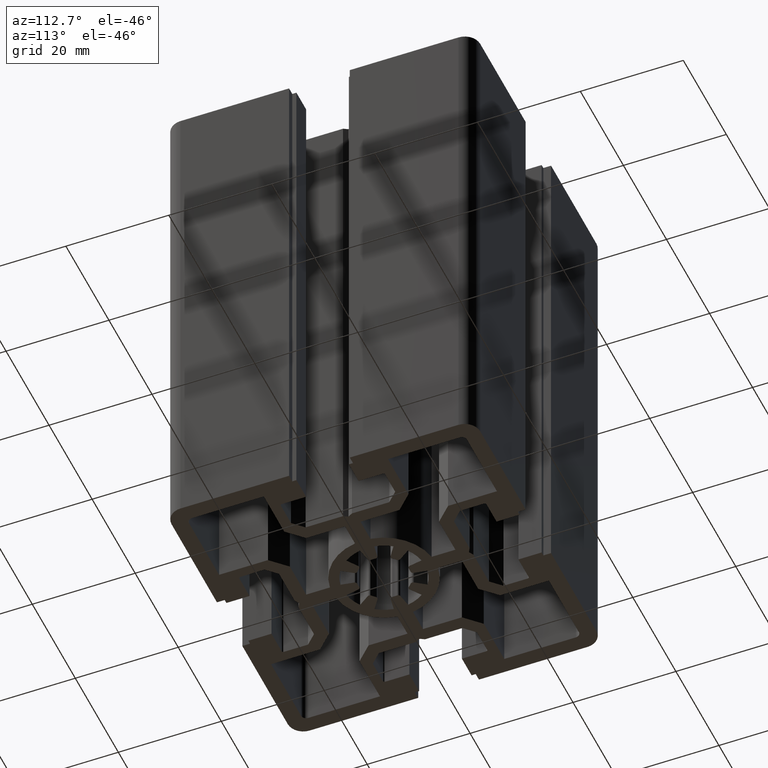
[diagram: clean part render]
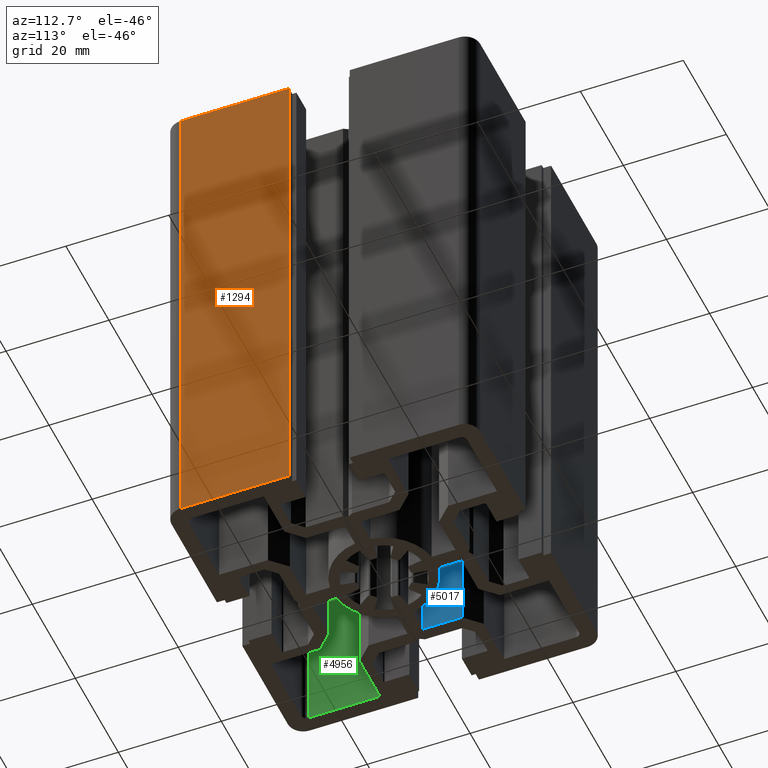
[diagram: same view with three faces highlighted in distinct colors, each labeled with its STEP entity id]
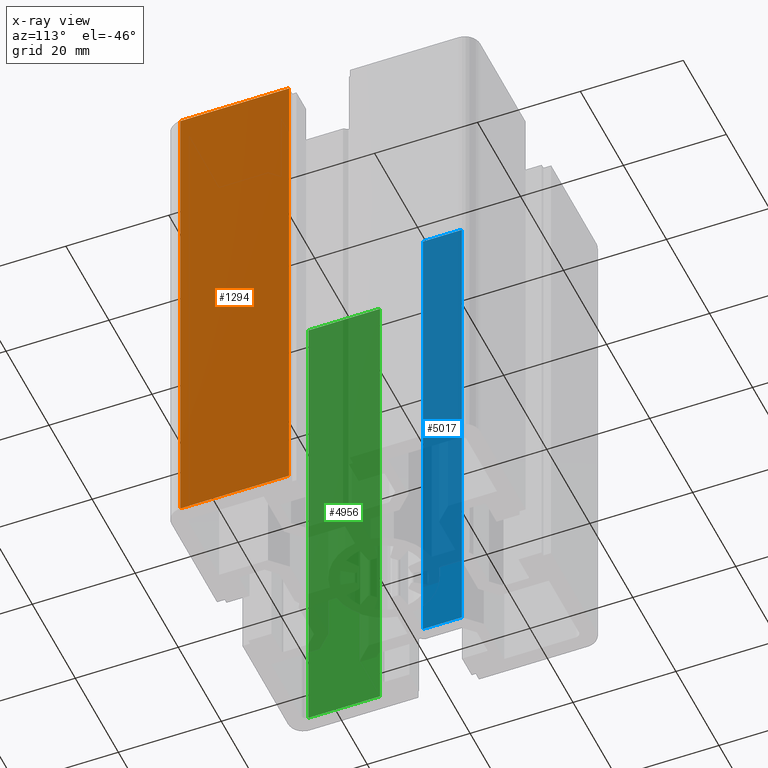
[diagram: x-ray of the same camera — body ghosted, the three highlighted faces saturated]
A machine part, auxiliary view with three faces highlighted in distinct colors.
The next image is the same camera in x-ray (body ghosted, the three faces saturated) — at least one of them is partly hidden behind the body in this view.
Their STEP definitions:

[orange] entity #1294 — the highlighted planar face has unit normal (-1, 0, 0).
#465 = EDGE_CURVE ( 'NONE', #520, #513, #2547, .T. ) ;
#513 = VERTEX_POINT ( 'NONE', #2641 ) ;
#520 = VERTEX_POINT ( 'NONE', #2635 ) ;
#1135 = EDGE_CURVE ( 'NONE', #1183, #1174, #5427, .T. ) ;
#1174 = VERTEX_POINT ( 'NONE', #5437 ) ;
#1183 = VERTEX_POINT ( 'NONE', #5461 ) ;
#1229 = ORIENTED_EDGE ( 'NONE', *, *, #1135, .T. ) ;
#1231 = ORIENTED_EDGE ( 'NONE', *, *, #465, .F. ) ;
#1238 = ORIENTED_EDGE ( 'NONE', *, *, #1336, .T. ) ;
#1292 = ORIENTED_EDGE ( 'NONE', *, *, #1338, .F. ) ;
#1294 = ADVANCED_FACE ( 'NONE', ( #5662 ), #5663, .F. ) ;
#1332 = EDGE_LOOP ( 'NONE', ( #1229, #1292, #1231, #1238 ) ) ;
#1336 = EDGE_CURVE ( 'NONE', #520, #1183, #5711, .T. ) ;
#1338 = EDGE_CURVE ( 'NONE', #513, #1174, #5706, .T. ) ;
#2544 = DIRECTION ( 'NONE',  ( 0.0000000000000000000, 1.000000000000000000, 0.0000000000000000000 ) ) ;
#2545 = VECTOR ( 'NONE', #2544, 1000.000000000000000 ) ;
#2546 = CARTESIAN_POINT ( 'NONE',  ( 30.00000000000000000, -27.00000000000000000, 100.0000000000000000 ) ) ;
#2547 = LINE ( 'NONE', #2546, #2545 ) ;
#2635 = CARTESIAN_POINT ( 'NONE',  ( 30.00000000000000000, -27.00000000000000000, 100.0000000000000000 ) ) ;
#2641 = CARTESIAN_POINT ( 'NONE',  ( 30.00000000000000000, -5.899999999999997700, 100.0000000000000000 ) ) ;
#5424 = DIRECTION ( 'NONE',  ( 0.0000000000000000000, 1.000000000000000000, 0.0000000000000000000 ) ) ;
#5425 = VECTOR ( 'NONE', #5424, 1000.000000000000000 ) ;
#5426 = CARTESIAN_POINT ( 'NONE',  ( 30.00000000000000000, -27.00000000000000000, 0.0000000000000000000 ) ) ;
#5427 = LINE ( 'NONE', #5426, #5425 ) ;
#5437 = CARTESIAN_POINT ( 'NONE',  ( 30.00000000000000000, -5.899999999999997700, 0.0000000000000000000 ) ) ;
#5461 = CARTESIAN_POINT ( 'NONE',  ( 30.00000000000000000, -27.00000000000000000, 0.0000000000000000000 ) ) ;
#5645 = DIRECTION ( 'NONE',  ( 0.0000000000000000000, 0.0000000000000000000, 1.000000000000000000 ) ) ;
#5646 = DIRECTION ( 'NONE',  ( -1.000000000000000000, 0.0000000000000000000, 0.0000000000000000000 ) ) ;
#5647 = CARTESIAN_POINT ( 'NONE',  ( 30.00000000000000000, -27.00000000000000000, 100.0000000000000000 ) ) ;
#5655 = AXIS2_PLACEMENT_3D ( 'NONE', #5647, #5646, #5645 ) ;
#5662 = FACE_OUTER_BOUND ( 'NONE', #1332, .T. ) ;
#5663 = PLANE ( 'NONE',  #5655 ) ;
#5703 = DIRECTION ( 'NONE',  ( -0.0000000000000000000, -0.0000000000000000000, -1.000000000000000000 ) ) ;
#5704 = VECTOR ( 'NONE', #5703, 1000.000000000000000 ) ;
#5705 = CARTESIAN_POINT ( 'NONE',  ( 30.00000000000000000, -5.899999999999997700, 100.0000000000000000 ) ) ;
#5706 = LINE ( 'NONE', #5705, #5704 ) ;
#5708 = DIRECTION ( 'NONE',  ( -0.0000000000000000000, -0.0000000000000000000, -1.000000000000000000 ) ) ;
#5709 = VECTOR ( 'NONE', #5708, 1000.000000000000000 ) ;
#5710 = CARTESIAN_POINT ( 'NONE',  ( 30.00000000000000000, -27.00000000000000000, 100.0000000000000000 ) ) ;
#5711 = LINE ( 'NONE', #5710, #5709 ) ;

[blue] entity #5017 — the highlighted planar face has unit normal (1, 0, -0).
#17 = EDGE_CURVE ( 'NONE', #388, #980, #1877, .T. ) ;
#30 = ORIENTED_EDGE ( 'NONE', *, *, #17, .F. ) ;
#33 = EDGE_LOOP ( 'NONE', ( #5020, #30, #3931, #34 ) ) ;
#34 = ORIENTED_EDGE ( 'NONE', *, *, #42, .T. ) ;
#42 = EDGE_CURVE ( 'NONE', #440, #987, #1892, .T. ) ;
#388 = VERTEX_POINT ( 'NONE', #2457 ) ;
#412 = EDGE_CURVE ( 'NONE', #388, #440, #2429, .T. ) ;
#440 = VERTEX_POINT ( 'NONE', #2540 ) ;
#980 = VERTEX_POINT ( 'NONE', #3483 ) ;
#987 = VERTEX_POINT ( 'NONE', #3477 ) ;
#996 = EDGE_CURVE ( 'NONE', #980, #987, #3505, .T. ) ;
#1863 = DIRECTION ( 'NONE',  ( -0.0000000000000000000, -0.0000000000000000000, -1.000000000000000000 ) ) ;
#1864 = VECTOR ( 'NONE', #1863, 1000.000000000000000 ) ;
#1865 = CARTESIAN_POINT ( 'NONE',  ( -14.50000000000000000, 9.075000000000001100, 100.0000000000000000 ) ) ;
#1877 = LINE ( 'NONE', #1865, #1864 ) ;
#1889 = DIRECTION ( 'NONE',  ( -0.0000000000000000000, -0.0000000000000000000, -1.000000000000000000 ) ) ;
#1890 = VECTOR ( 'NONE', #1889, 1000.000000000000000 ) ;
#1891 = CARTESIAN_POINT ( 'NONE',  ( -14.50000000000000000, 1.500000000000000000, 100.0000000000000000 ) ) ;
#1892 = LINE ( 'NONE', #1891, #1890 ) ;
#2429 = LINE ( 'NONE', #2473, #2472 ) ;
#2457 = CARTESIAN_POINT ( 'NONE',  ( -14.50000000000000000, 9.075000000000001100, 100.0000000000000000 ) ) ;
#2471 = DIRECTION ( 'NONE',  ( 0.0000000000000000000, -1.000000000000000000, 0.0000000000000000000 ) ) ;
#2472 = VECTOR ( 'NONE', #2471, 1000.000000000000000 ) ;
#2473 = CARTESIAN_POINT ( 'NONE',  ( -14.50000000000000000, 9.075000000000001100, 100.0000000000000000 ) ) ;
#2540 = CARTESIAN_POINT ( 'NONE',  ( -14.50000000000000000, 1.500000000000000000, 100.0000000000000000 ) ) ;
#3477 = CARTESIAN_POINT ( 'NONE',  ( -14.50000000000000000, 1.500000000000000000, 0.0000000000000000000 ) ) ;
#3483 = CARTESIAN_POINT ( 'NONE',  ( -14.50000000000000000, 9.075000000000001100, 0.0000000000000000000 ) ) ;
#3502 = DIRECTION ( 'NONE',  ( 0.0000000000000000000, -1.000000000000000000, 0.0000000000000000000 ) ) ;
#3503 = VECTOR ( 'NONE', #3502, 1000.000000000000000 ) ;
#3504 = CARTESIAN_POINT ( 'NONE',  ( -14.50000000000000000, 9.075000000000001100, 0.0000000000000000000 ) ) ;
#3505 = LINE ( 'NONE', #3504, #3503 ) ;
#3931 = ORIENTED_EDGE ( 'NONE', *, *, #412, .T. ) ;
#4138 = DIRECTION ( 'NONE',  ( -0.0000000000000000000, 0.0000000000000000000, -1.000000000000000000 ) ) ;
#4139 = DIRECTION ( 'NONE',  ( 1.000000000000000000, 0.0000000000000000000, -0.0000000000000000000 ) ) ;
#4147 = PLANE ( 'NONE',  #4149 ) ;
#4149 = AXIS2_PLACEMENT_3D ( 'NONE', #4152, #4139, #4138 ) ;
#4150 = FACE_OUTER_BOUND ( 'NONE', #33, .T. ) ;
#4152 = CARTESIAN_POINT ( 'NONE',  ( -14.50000000000000000, 9.075000000000001100, 100.0000000000000000 ) ) ;
#5017 = ADVANCED_FACE ( 'NONE', ( #4150 ), #4147, .T. ) ;
#5020 = ORIENTED_EDGE ( 'NONE', *, *, #996, .F. ) ;

[green] entity #4956 — the highlighted planar face has unit normal (1, 0, -0).
#854 = VERTEX_POINT ( 'NONE', #3261 ) ;
#864 = VERTEX_POINT ( 'NONE', #3283 ) ;
#896 = EDGE_CURVE ( 'NONE', #854, #864, #3349, .T. ) ;
#3261 = CARTESIAN_POINT ( 'NONE',  ( -27.00000000000000000, -12.07500000000001000, 100.0000000000000000 ) ) ;
#3283 = CARTESIAN_POINT ( 'NONE',  ( -27.00000000000000000, -26.00000000000000400, 100.0000000000000000 ) ) ;
#3346 = DIRECTION ( 'NONE',  ( 0.0000000000000000000, -1.000000000000000000, 0.0000000000000000000 ) ) ;
#3347 = VECTOR ( 'NONE', #3346, 1000.000000000000000 ) ;
#3348 = CARTESIAN_POINT ( 'NONE',  ( -27.00000000000000000, -12.07500000000001000, 100.0000000000000000 ) ) ;
#3349 = LINE ( 'NONE', #3348, #3347 ) ;
#3446 = VECTOR ( 'NONE', #3911, 1000.000000000000000 ) ;
#3911 = DIRECTION ( 'NONE',  ( 0.0000000000000000000, -1.000000000000000000, 0.0000000000000000000 ) ) ;
#4045 = AXIS2_PLACEMENT_3D ( 'NONE', #4047, #4104, #4103 ) ;
#4047 = CARTESIAN_POINT ( 'NONE',  ( -27.00000000000000000, -12.07500000000001000, 100.0000000000000000 ) ) ;
#4053 = FACE_OUTER_BOUND ( 'NONE', #4950, .T. ) ;
#4059 = DIRECTION ( 'NONE',  ( -0.0000000000000000000, -0.0000000000000000000, -1.000000000000000000 ) ) ;
#4060 = VECTOR ( 'NONE', #4059, 1000.000000000000000 ) ;
#4061 = CARTESIAN_POINT ( 'NONE',  ( -27.00000000000000000, -26.00000000000000400, 100.0000000000000000 ) ) ;
#4062 = LINE ( 'NONE', #4061, #4060 ) ;
#4068 = LINE ( 'NONE', #4098, #4097 ) ;
#4074 = PLANE ( 'NONE',  #4045 ) ;
#4096 = DIRECTION ( 'NONE',  ( -0.0000000000000000000, -0.0000000000000000000, -1.000000000000000000 ) ) ;
#4097 = VECTOR ( 'NONE', #4096, 1000.000000000000000 ) ;
#4098 = CARTESIAN_POINT ( 'NONE',  ( -27.00000000000000000, -12.07500000000001000, 100.0000000000000000 ) ) ;
#4103 = DIRECTION ( 'NONE',  ( -0.0000000000000000000, 0.0000000000000000000, -1.000000000000000000 ) ) ;
#4104 = DIRECTION ( 'NONE',  ( 1.000000000000000000, 0.0000000000000000000, -0.0000000000000000000 ) ) ;
#4137 = LINE ( 'NONE', #4142, #3446 ) ;
#4142 = CARTESIAN_POINT ( 'NONE',  ( -27.00000000000000000, -12.07500000000001000, 0.0000000000000000000 ) ) ;
#4587 = CARTESIAN_POINT ( 'NONE',  ( -27.00000000000000000, -26.00000000000000400, 0.0000000000000000000 ) ) ;
#4638 = CARTESIAN_POINT ( 'NONE',  ( -27.00000000000000000, -12.07500000000001000, 0.0000000000000000000 ) ) ;
#4937 = ORIENTED_EDGE ( 'NONE', *, *, #5284, .F. ) ;
#4944 = EDGE_CURVE ( 'NONE', #864, #5286, #4062, .T. ) ;
#4950 = EDGE_LOOP ( 'NONE', ( #4937, #4958, #4955, #4966 ) ) ;
#4955 = ORIENTED_EDGE ( 'NONE', *, *, #896, .T. ) ;
#4956 = ADVANCED_FACE ( 'NONE', ( #4053 ), #4074, .T. ) ;
#4958 = ORIENTED_EDGE ( 'NONE', *, *, #4959, .F. ) ;
#4959 = EDGE_CURVE ( 'NONE', #854, #5290, #4068, .T. ) ;
#4966 = ORIENTED_EDGE ( 'NONE', *, *, #4944, .T. ) ;
#5284 = EDGE_CURVE ( 'NONE', #5290, #5286, #4137, .T. ) ;
#5286 = VERTEX_POINT ( 'NONE', #4587 ) ;
#5290 = VERTEX_POINT ( 'NONE', #4638 ) ;